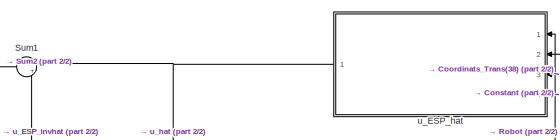
[diagram: root canvas - part 1/2, top center region]
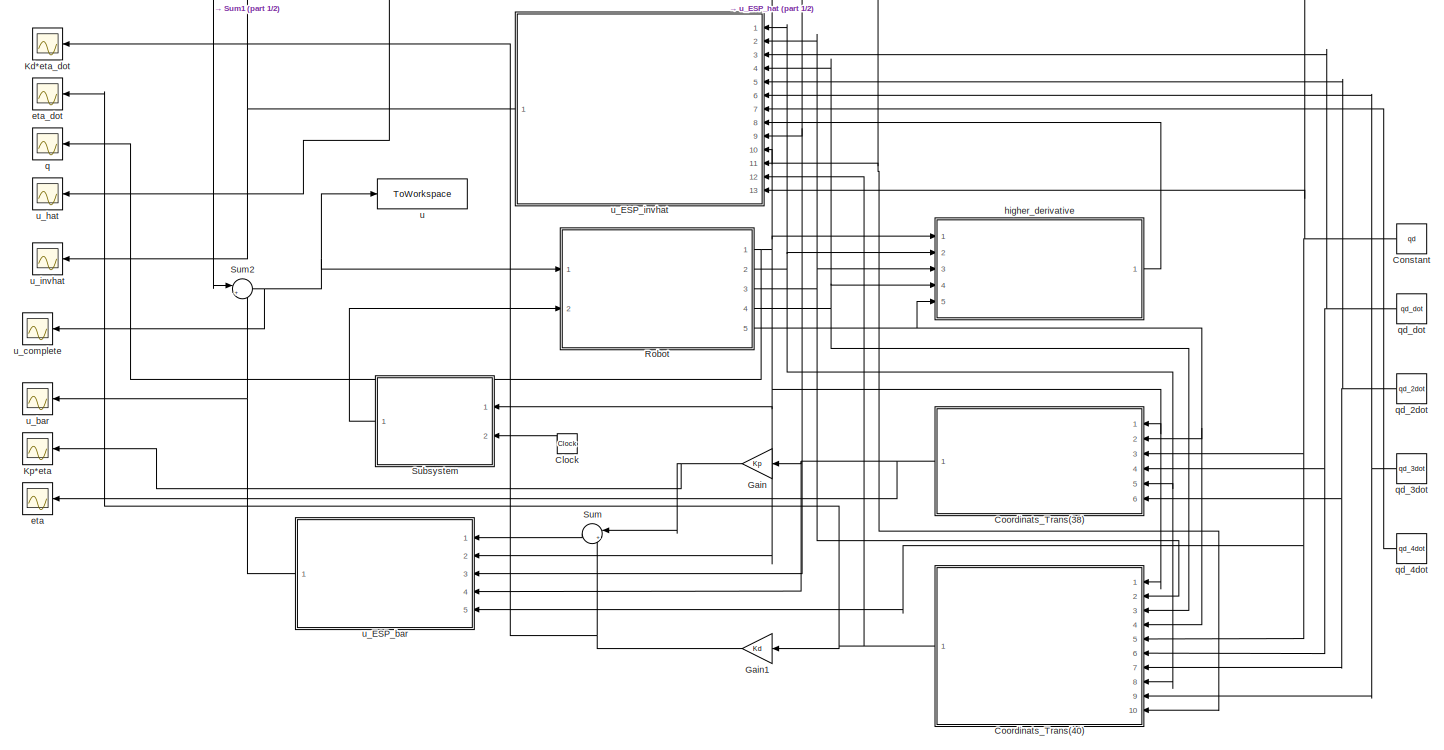
[diagram: root canvas - part 2/2, most of the canvas]
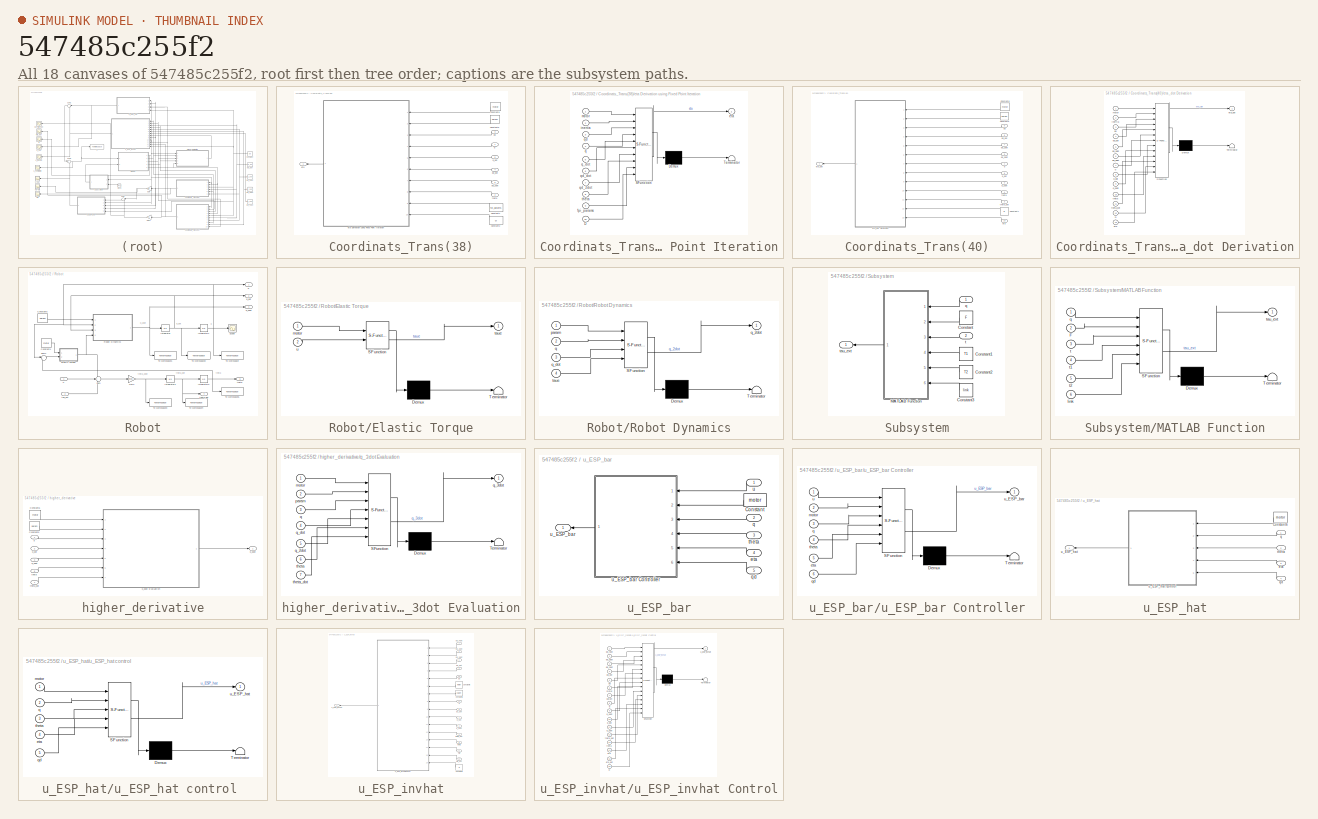
[diagram: thumbnail index - all 18 canvases of the model, root first then tree order]
MODEL slx_547485c255f2
KIND model
CONFIG AbsTol = auto
CONFIG EnableMultiTasking = off
CONFIG FixedStep = 0.001
CONFIG MaxStep = auto
CONFIG MinStep = auto
CONFIG RelTol = 1e-3
CONFIG SampleTimeConstraint = Unconstrained
CONFIG SolverName = ode8
CONFIG StartTime = 0.0
CONFIG StopTime = T
BLOCK [Clock] Clock
BLOCK [Constant] Constant
  Value = qd
  VectorParams1D = off
BLOCK [SubSystem] Coordinats_Trans(38)
  Ports = [6, 1]
  RequestExecContextInheritance = off
BLOCK [Inport] Coordinats_Trans(38)/ q_dot
  NameLocation = top
  Port = 5
BLOCK [Inport] Coordinats_Trans(38)/ qd
  NameLocation = top
  Port = 3
BLOCK [Inport] Coordinats_Trans(38)/ qd_dot
  NameLocation = top
  Port = 4
BLOCK [Constant] Coordinats_Trans(38)/Constant1
  NameLocation = top
  Value = fpi_params
  VectorParams1D = off
BLOCK [Constant] Coordinats_Trans(38)/Constant2
  NameLocation = top
  Value = D
  VectorParams1D = off
BLOCK [Constant] Coordinats_Trans(38)/Constant5
  NameLocation = top
  Value = param
  VectorParams1D = off
BLOCK [Constant] Coordinats_Trans(38)/Constant6
  NameLocation = top
  Value = motor
  VectorParams1D = off
BLOCK [Outport] Coordinats_Trans(38)/eta
  NameLocation = top
BLOCK [SubSystem] Coordinats_Trans(38)/eta Derivation using Fixed Point Iteration
  ErrorFcn = Stateflow.Translate.translate
  NameLocation = top
  PermitHierarchicalResolution = ExplicitOnly
  Ports = [10, 1]
  RequestExecContextInheritance = off
  SFBlockType = MATLAB Function
  TreatAsAtomicUnit = on
BLOCK [Demux] Coordinats_Trans(38)/eta Derivation using Fixed Point Iteration/ Demux 
  Outputs = 1
  Ports = [1, 1]
BLOCK [S-Function] Coordinats_Trans(38)/eta Derivation using Fixed Point Iteration/ SFunction 
  EnableBusSupport = on
  FunctionName = sf_sfun
  PortCounts = [10 2]
  Ports = [10, 2]
  SFcnIsStateOwnerBlock = off
  SFunctionDeploymentMode = off
  Tag = Stateflow S-Function 1
BLOCK [Terminator] Coordinats_Trans(38)/eta Derivation using Fixed Point Iteration/ Terminator 
BLOCK [Inport] Coordinats_Trans(38)/eta Derivation using Fixed Point Iteration/D
  Port = 10
BLOCK [Outport] Coordinats_Trans(38)/eta Derivation using Fixed Point Iteration/eta
BLOCK [Inport] Coordinats_Trans(38)/eta Derivation using Fixed Point Iteration/fpi_params
  Port = 9
BLOCK [Inport] Coordinats_Trans(38)/eta Derivation using Fixed Point Iteration/inertia
  Port = 2
BLOCK [Inport] Coordinats_Trans(38)/eta Derivation using Fixed Point Iteration/motor
BLOCK [Inport] Coordinats_Trans(38)/eta Derivation using Fixed Point Iteration/q
  Port = 4
BLOCK [Inport] Coordinats_Trans(38)/eta Derivation using Fixed Point Iteration/q_dot
  Port = 5
BLOCK [Inport] Coordinats_Trans(38)/eta Derivation using Fixed Point Iteration/qd
  Port = 3
BLOCK [Inport] Coordinats_Trans(38)/eta Derivation using Fixed Point Iteration/qd_2dot
  Port = 7
BLOCK [Inport] Coordinats_Trans(38)/eta Derivation using Fixed Point Iteration/qd_dot
  Port = 6
BLOCK [Inport] Coordinats_Trans(38)/eta Derivation using Fixed Point Iteration/theta
  Port = 8
BLOCK [Inport] Coordinats_Trans(38)/q
  NameLocation = top
BLOCK [Inport] Coordinats_Trans(38)/qd_2dot
  NameLocation = top
  Port = 6
BLOCK [Inport] Coordinats_Trans(38)/theta
  NameLocation = top
  Port = 2
BLOCK [SubSystem] Coordinats_Trans(40)
  Ports = [10, 1]
  RequestExecContextInheritance = off
BLOCK [Inport] Coordinats_Trans(40)/ theta
  NameLocation = top
  Port = 4
BLOCK [Constant] Coordinats_Trans(40)/Constant1
  NameLocation = top
  Value = D
  VectorParams1D = off
BLOCK [Constant] Coordinats_Trans(40)/Constant5
  NameLocation = top
  Value = param
  VectorParams1D = off
BLOCK [Constant] Coordinats_Trans(40)/Constant6
  NameLocation = top
  Value = motor
  VectorParams1D = off
BLOCK [Inport] Coordinats_Trans(40)/eta
  NameLocation = top
  Port = 10
BLOCK [Outport] Coordinats_Trans(40)/eta_dot
  NameLocation = top
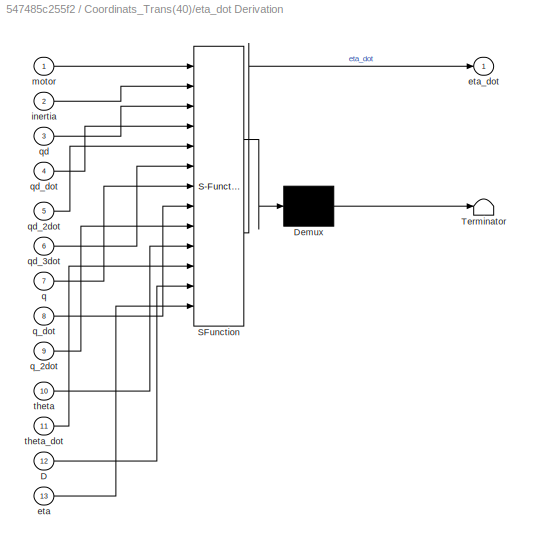
BLOCK [SubSystem] Coordinats_Trans(40)/eta_dot Derivation
  ErrorFcn = Stateflow.Translate.translate
  NameLocation = top
  PermitHierarchicalResolution = ExplicitOnly
  Ports = [13, 1]
  RequestExecContextInheritance = off
  SFBlockType = MATLAB Function
  TreatAsAtomicUnit = on
BLOCK [Demux] Coordinats_Trans(40)/eta_dot Derivation/ Demux 
  Outputs = 1
  Ports = [1, 1]
BLOCK [S-Function] Coordinats_Trans(40)/eta_dot Derivation/ SFunction 
  EnableBusSupport = on
  FunctionName = sf_sfun
  PortCounts = [13 2]
  Ports = [13, 2]
  SFcnIsStateOwnerBlock = off
  SFunctionDeploymentMode = off
  Tag = Stateflow S-Function 2
BLOCK [Terminator] Coordinats_Trans(40)/eta_dot Derivation/ Terminator 
BLOCK [Inport] Coordinats_Trans(40)/eta_dot Derivation/D
  Port = 12
BLOCK [Inport] Coordinats_Trans(40)/eta_dot Derivation/eta
  Port = 13
BLOCK [Outport] Coordinats_Trans(40)/eta_dot Derivation/eta_dot
BLOCK [Inport] Coordinats_Trans(40)/eta_dot Derivation/inertia
  Port = 2
BLOCK [Inport] Coordinats_Trans(40)/eta_dot Derivation/motor
BLOCK [Inport] Coordinats_Trans(40)/eta_dot Derivation/q
  Port = 7
BLOCK [Inport] Coordinats_Trans(40)/eta_dot Derivation/q_2dot
  Port = 9
BLOCK [Inport] Coordinats_Trans(40)/eta_dot Derivation/q_dot
  Port = 8
BLOCK [Inport] Coordinats_Trans(40)/eta_dot Derivation/qd
  Port = 3
BLOCK [Inport] Coordinats_Trans(40)/eta_dot Derivation/qd_2dot
  Port = 5
BLOCK [Inport] Coordinats_Trans(40)/eta_dot Derivation/qd_3dot
  Port = 6
BLOCK [Inport] Coordinats_Trans(40)/eta_dot Derivation/qd_dot
  Port = 4
BLOCK [Inport] Coordinats_Trans(40)/eta_dot Derivation/theta
  Port = 10
BLOCK [Inport] Coordinats_Trans(40)/eta_dot Derivation/theta_dot
  Port = 11
BLOCK [Inport] Coordinats_Trans(40)/q
  NameLocation = top
BLOCK [Inport] Coordinats_Trans(40)/q_2dot
  NameLocation = top
  Port = 2
BLOCK [Inport] Coordinats_Trans(40)/q_dot
  NameLocation = top
  Port = 8
BLOCK [Inport] Coordinats_Trans(40)/qd
  NameLocation = top
  Port = 5
BLOCK [Inport] Coordinats_Trans(40)/qd_2dot
  NameLocation = top
  Port = 7
BLOCK [Inport] Coordinats_Trans(40)/qd_3dot
  NameLocation = top
  Port = 9
BLOCK [Inport] Coordinats_Trans(40)/qd_dot
  NameLocation = top
  Port = 6
BLOCK [Inport] Coordinats_Trans(40)/theta_dot
  NameLocation = top
  Port = 3
BLOCK [Gain] Gain
  Gain = Kp
  Multiplication = Matrix(K*u) (u vector)
BLOCK [Gain] Gain1
  Gain = Kd
  Multiplication = Matrix(K*u) (u vector)
BLOCK [Scope] Kd*eta_dot
  Floating = off
  NumInputPorts = 1
  Ports = [1]
  ScopeSpecificationString = Simulink.scopes.TimeScopeBlockCfg('CurrentConfiguration', extmgr.ConfigurationSet(extmgr.Configuration('Core','General UI',true),extmgr.Configuration('Core','Source UI',true),extmgr.Configuration('Sources','WiredSimulink',true,'DataLoggingVariableName','ScopeData9'),extmgr.Configuration('Visuals','Time Domain',true,'SerializedDisplays',{struct('MinYLimReal','-6028.16779','MaxYLimReal','17338.59826...<+1449ch>
BLOCK [Scope] Kp*eta
  Floating = off
  NumInputPorts = 1
  Ports = [1]
  ScopeSpecificationString = Simulink.scopes.TimeScopeBlockCfg('CurrentConfiguration', extmgr.ConfigurationSet(extmgr.Configuration('Core','General UI',true),extmgr.Configuration('Core','Source UI',true),extmgr.Configuration('Sources','WiredSimulink',true,'DataLoggingVariableName','ScopeData6'),extmgr.Configuration('Visuals','Time Domain',true,'SerializedDisplays',{struct('MinYLimReal','-974.74154','MaxYLimReal','873.8432','Y...<+1422ch>
BLOCK [SubSystem] Robot
  Ports = [2, 5]
  RequestExecContextInheritance = off
BLOCK [Constant] Robot/Constant1
  Value = motor
  VectorParams1D = off
BLOCK [Constant] Robot/Constant5
  Value = param
  VectorParams1D = off
BLOCK [SubSystem] Robot/Elastic Torque
  ErrorFcn = Stateflow.Translate.translate
  PermitHierarchicalResolution = ExplicitOnly
  Ports = [2, 1]
  RequestExecContextInheritance = off
  SFBlockType = MATLAB Function
  TreatAsAtomicUnit = on
BLOCK [Demux] Robot/Elastic Torque/ Demux 
  Outputs = 1
  Ports = [1, 1]
BLOCK [S-Function] Robot/Elastic Torque/ SFunction 
  EnableBusSupport = on
  FunctionName = sf_sfun
  PortCounts = [2 2]
  Ports = [2, 2]
  SFcnIsStateOwnerBlock = off
  SFunctionDeploymentMode = off
  Tag = Stateflow S-Function 7
BLOCK [Terminator] Robot/Elastic Torque/ Terminator 
BLOCK [Inport] Robot/Elastic Torque/motor
BLOCK [Outport] Robot/Elastic Torque/taue
BLOCK [Inport] Robot/Elastic Torque/u
  Port = 2
BLOCK [Gain] Robot/Gain
  Gain = invB
  Multiplication = Matrix(K*u)
BLOCK [Integrator] Robot/Integrator
  InitialCondition = qd0
  Ports = [1, 1]
BLOCK [Integrator] Robot/Integrator1
  InitialCondition = q0
  Ports = [1, 1]
BLOCK [Integrator] Robot/Integrator2
  InitialCondition = thetad0
  Ports = [1, 1]
BLOCK [Integrator] Robot/Integrator3
  InitialCondition = theta0
  Ports = [1, 1]
BLOCK [SubSystem] Robot/Robot Dynamics
  ErrorFcn = Stateflow.Translate.translate
  PermitHierarchicalResolution = ExplicitOnly
  Ports = [4, 1]
  RequestExecContextInheritance = off
  SFBlockType = MATLAB Function
  TreatAsAtomicUnit = on
BLOCK [Demux] Robot/Robot Dynamics/ Demux 
  Outputs = 1
  Ports = [1, 1]
BLOCK [S-Function] Robot/Robot Dynamics/ SFunction 
  EnableBusSupport = on
  FunctionName = sf_sfun
  PortCounts = [4 2]
  Ports = [4, 2]
  SFcnIsStateOwnerBlock = off
  SFunctionDeploymentMode = off
  Tag = Stateflow S-Function 4
BLOCK [Terminator] Robot/Robot Dynamics/ Terminator 
BLOCK [Inport] Robot/Robot Dynamics/param
BLOCK [Inport] Robot/Robot Dynamics/q
  Port = 2
BLOCK [Outport] Robot/Robot Dynamics/q_2dot
BLOCK [Inport] Robot/Robot Dynamics/q_dot
  Port = 3
BLOCK [Inport] Robot/Robot Dynamics/taue
  Port = 4
BLOCK [Scope] Robot/Scope
  Floating = off
  NumInputPorts = 1
  Ports = [1]
  ScopeSpecificationString = Simulink.scopes.TimeScopeBlockCfg('CurrentConfiguration', extmgr.ConfigurationSet(extmgr.Configuration('Core','General UI',true),extmgr.Configuration('Core','Source UI',true),extmgr.Configuration('Sources','WiredSimulink',true,'DataLoggingVariableName','ScopeData1'),extmgr.Configuration('Visuals','Time Domain',true,'SerializedDisplays',{struct('MinYLimReal','-1.76715','MaxYLimReal','0.19635','YLab...<+1433ch>
BLOCK [Sum] Robot/Sum
  Inputs = -++
  Ports = [3, 1]
BLOCK [Sum] Robot/Sum1
  Inputs = |-+
  Ports = [2, 1]
BLOCK [ToWorkspace] Robot/To Workspace
  FixptAsFi = on
  MaxDataPoints = inf
  Ports = [1]
  SampleTime = -1
  VariableName = q
BLOCK [ToWorkspace] Robot/To Workspace1
  FixptAsFi = on
  MaxDataPoints = inf
  Ports = [1]
  SampleTime = -1
  VariableName = q_2dot
BLOCK [ToWorkspace] Robot/To Workspace2
  FixptAsFi = on
  MaxDataPoints = inf
  Ports = [1]
  SampleTime = -1
  VariableName = q_dot
BLOCK [ToWorkspace] Robot/To Workspace3
  FixptAsFi = on
  MaxDataPoints = inf
  Ports = [1]
  SampleTime = -1
  VariableName = theta_2dot
BLOCK [ToWorkspace] Robot/To Workspace4
  FixptAsFi = on
  MaxDataPoints = inf
  Ports = [1]
  SampleTime = -1
  VariableName = theta_dot
BLOCK [ToWorkspace] Robot/To Workspace5
  FixptAsFi = on
  MaxDataPoints = inf
  Ports = [1]
  SampleTime = -1
  VariableName = theta
BLOCK [Outport] Robot/q
  IconDisplay = Port number and signal name
BLOCK [Outport] Robot/q_2dot
  Port = 3
BLOCK [Outport] Robot/q_dot
  IconDisplay = Port number and signal name
  Port = 2
BLOCK [Inport] Robot/tau_ext
  Port = 2
BLOCK [Outport] Robot/theta
  IconDisplay = Port number and signal name
  Port = 5
BLOCK [Outport] Robot/theta_dot 
  IconDisplay = Port number and signal name
  Port = 4
BLOCK [Inport] Robot/u
  IconDisplay = Signal name
BLOCK [SubSystem] Subsystem
  Ports = [2, 1]
  RequestExecContextInheritance = off
BLOCK [Constant] Subsystem/Constant
  Value = F
  VectorParams1D = off
BLOCK [Constant] Subsystem/Constant1
  Value = T1
  VectorParams1D = off
BLOCK [Constant] Subsystem/Constant2
  Value = T2
  VectorParams1D = off
BLOCK [Constant] Subsystem/Constant3
  Value = link
  VectorParams1D = off
BLOCK [SubSystem] Subsystem/MATLAB Function
  ErrorFcn = Stateflow.Translate.translate
  PermitHierarchicalResolution = ExplicitOnly
  Ports = [6, 1]
  RequestExecContextInheritance = off
  SFBlockType = MATLAB Function
  TreatAsAtomicUnit = on
BLOCK [Demux] Subsystem/MATLAB Function/ Demux 
  Outputs = 1
  Ports = [1, 1]
BLOCK [S-Function] Subsystem/MATLAB Function/ SFunction 
  EnableBusSupport = on
  FunctionName = sf_sfun
  PortCounts = [6 2]
  Ports = [6, 2]
  SFcnIsStateOwnerBlock = off
  SFunctionDeploymentMode = off
  Tag = Stateflow S-Function 8
BLOCK [Terminator] Subsystem/MATLAB Function/ Terminator 
BLOCK [Inport] Subsystem/MATLAB Function/F
  Port = 2
BLOCK [Inport] Subsystem/MATLAB Function/link
  Port = 6
BLOCK [Inport] Subsystem/MATLAB Function/q
BLOCK [Inport] Subsystem/MATLAB Function/t
  Port = 3
BLOCK [Inport] Subsystem/MATLAB Function/t1
  Port = 4
BLOCK [Inport] Subsystem/MATLAB Function/t2
  Port = 5
BLOCK [Outport] Subsystem/MATLAB Function/tau_ext
BLOCK [Inport] Subsystem/q
BLOCK [Inport] Subsystem/t
  Port = 2
BLOCK [Outport] Subsystem/tau_ext
BLOCK [Sum] Sum
  Inputs = |++
  Ports = [2, 1]
BLOCK [Sum] Sum1
  Inputs = |++
  Ports = [2, 1]
BLOCK [Sum] Sum2
  Inputs = |++
  Ports = [2, 1]
BLOCK [Scope] eta
  Floating = off
  NumInputPorts = 1
  Ports = [1]
  ScopeSpecificationString = Simulink.scopes.TimeScopeBlockCfg('CurrentConfiguration', extmgr.ConfigurationSet(extmgr.Configuration('Core','General UI',true),extmgr.Configuration('Core','Source UI',true),extmgr.Configuration('Sources','WiredSimulink',true,'DataLoggingVariableName','ScopeData5'),extmgr.Configuration('Visuals','Time Domain',true,'SerializedDisplays',{struct('MinYLimReal','-0.99746','MaxYLimReal','0.42209','YLab...<+1502ch>
BLOCK [Scope] eta_dot
  Floating = off
  NumInputPorts = 1
  Ports = [1]
  ScopeSpecificationString = Simulink.scopes.TimeScopeBlockCfg('CurrentConfiguration', extmgr.ConfigurationSet(extmgr.Configuration('Core','General UI',true),extmgr.Configuration('Core','Source UI',true),extmgr.Configuration('Sources','WiredSimulink',true,'DataLoggingVariableName','ScopeData8'),extmgr.Configuration('Visuals','Time Domain',true,'SerializedDisplays',{struct('MinYLimReal','-3.69425','MaxYLimReal','6.18746','YLab...<+1458ch>
BLOCK [SubSystem] higher_derivative
  Ports = [5, 1]
  RequestExecContextInheritance = off
BLOCK [Constant] higher_derivative/Constant5
  Value = param
  VectorParams1D = off
BLOCK [Constant] higher_derivative/Constant6
  Value = motor
  VectorParams1D = off
BLOCK [Inport] higher_derivative/q 
BLOCK [Inport] higher_derivative/q_2dot
  Port = 3
BLOCK [Outport] higher_derivative/q_3dot
BLOCK [SubSystem] higher_derivative/q_3dot Evaluation
  ErrorFcn = Stateflow.Translate.translate
  PermitHierarchicalResolution = ExplicitOnly
  Ports = [7, 1]
  RequestExecContextInheritance = off
  SFBlockType = MATLAB Function
  TreatAsAtomicUnit = on
BLOCK [Demux] higher_derivative/q_3dot Evaluation/ Demux 
  Outputs = 1
  Ports = [1, 1]
BLOCK [S-Function] higher_derivative/q_3dot Evaluation/ SFunction 
  EnableBusSupport = on
  FunctionName = sf_sfun
  PortCounts = [7 2]
  Ports = [7, 2]
  SFcnIsStateOwnerBlock = off
  SFunctionDeploymentMode = off
  Tag = Stateflow S-Function 10
BLOCK [Terminator] higher_derivative/q_3dot Evaluation/ Terminator 
BLOCK [Inport] higher_derivative/q_3dot Evaluation/motor
BLOCK [Inport] higher_derivative/q_3dot Evaluation/param
  Port = 2
BLOCK [Inport] higher_derivative/q_3dot Evaluation/q
  Port = 3
BLOCK [Inport] higher_derivative/q_3dot Evaluation/q_2dot
  Port = 5
BLOCK [Outport] higher_derivative/q_3dot Evaluation/q_3dot
BLOCK [Inport] higher_derivative/q_3dot Evaluation/q_dot
  Port = 4
BLOCK [Inport] higher_derivative/q_3dot Evaluation/theta
  Port = 6
BLOCK [Inport] higher_derivative/q_3dot Evaluation/theta_dot
  Port = 7
BLOCK [Inport] higher_derivative/q_dot
  Port = 2
BLOCK [Inport] higher_derivative/theta
  Port = 5
BLOCK [Inport] higher_derivative/theta_dot
  Port = 4
BLOCK [Scope] q
  Floating = off
  NumInputPorts = 1
  Ports = [1]
  ScopeSpecificationString = Simulink.scopes.TimeScopeBlockCfg('CurrentConfiguration', extmgr.ConfigurationSet(extmgr.Configuration('Core','General UI',true),extmgr.Configuration('Core','Source UI',true),extmgr.Configuration('Sources','WiredSimulink',true,'DataLoggingVariableName','ScopeData7'),extmgr.Configuration('Visuals','Time Domain',true,'SerializedDisplays',{struct('MinYLimReal','-0.74319','MaxYLimReal','1.68875','YLab...<+1421ch>
BLOCK [Constant] qd_2dot
  Value = qd_2dot
  VectorParams1D = off
BLOCK [Constant] qd_3dot
  Value = qd_3dot
  VectorParams1D = off
BLOCK [Constant] qd_4dot
  Value = qd_4dot
  VectorParams1D = off
BLOCK [Constant] qd_dot
  Value = qd_dot
  VectorParams1D = off
BLOCK [ToWorkspace] u
  FixptAsFi = on
  MaxDataPoints = inf
  Ports = [1]
  SampleTime = -1
  VariableName = u
BLOCK [SubSystem] u_ESP_bar
  Ports = [5, 1]
  RequestExecContextInheritance = off
BLOCK [Constant] u_ESP_bar/Constant
  Value = motor
  VectorParams1D = off
BLOCK [Inport] u_ESP_bar/eta
  Port = 4
BLOCK [Inport] u_ESP_bar/q
  Port = 2
BLOCK [Inport] u_ESP_bar/qd
  Port = 5
BLOCK [Inport] u_ESP_bar/theta
  Port = 3
BLOCK [Inport] u_ESP_bar/u
BLOCK [Outport] u_ESP_bar/u_ESP_bar
BLOCK [SubSystem] u_ESP_bar/u_ESP_bar Controller
  ErrorFcn = Stateflow.Translate.translate
  PermitHierarchicalResolution = ExplicitOnly
  Ports = [6, 1]
  RequestExecContextInheritance = off
  SFBlockType = MATLAB Function
  TreatAsAtomicUnit = on
BLOCK [Demux] u_ESP_bar/u_ESP_bar Controller/ Demux 
  Outputs = 1
  Ports = [1, 1]
BLOCK [S-Function] u_ESP_bar/u_ESP_bar Controller/ SFunction 
  EnableBusSupport = on
  FunctionName = sf_sfun
  PortCounts = [6 2]
  Ports = [6, 2]
  SFcnIsStateOwnerBlock = off
  SFunctionDeploymentMode = off
  Tag = Stateflow S-Function 3
BLOCK [Terminator] u_ESP_bar/u_ESP_bar Controller/ Terminator 
BLOCK [Inport] u_ESP_bar/u_ESP_bar Controller/eta
  Port = 5
BLOCK [Inport] u_ESP_bar/u_ESP_bar Controller/motor
  Port = 2
BLOCK [Inport] u_ESP_bar/u_ESP_bar Controller/q
  Port = 3
BLOCK [Inport] u_ESP_bar/u_ESP_bar Controller/qd
  Port = 6
BLOCK [Inport] u_ESP_bar/u_ESP_bar Controller/theta
  Port = 4
BLOCK [Inport] u_ESP_bar/u_ESP_bar Controller/u
BLOCK [Outport] u_ESP_bar/u_ESP_bar Controller/u_ESP_bar
BLOCK [SubSystem] u_ESP_hat
  Ports = [4, 1]
  RequestExecContextInheritance = off
BLOCK [Constant] u_ESP_hat/Constant6
  Value = motor
  VectorParams1D = off
BLOCK [Inport] u_ESP_hat/eta
  Port = 3
BLOCK [Inport] u_ESP_hat/q 
BLOCK [Inport] u_ESP_hat/qd
  Port = 4
BLOCK [Inport] u_ESP_hat/theta
  Port = 2
BLOCK [Outport] u_ESP_hat/u_ESP_hat
BLOCK [SubSystem] u_ESP_hat/u_ESP_hat control 
  ErrorFcn = Stateflow.Translate.translate
  PermitHierarchicalResolution = ExplicitOnly
  Ports = [5, 1]
  RequestExecContextInheritance = off
  SFBlockType = MATLAB Function
  TreatAsAtomicUnit = on
BLOCK [Demux] u_ESP_hat/u_ESP_hat control / Demux 
  Outputs = 1
  Ports = [1, 1]
BLOCK [S-Function] u_ESP_hat/u_ESP_hat control / SFunction 
  EnableBusSupport = on
  FunctionName = sf_sfun
  PortCounts = [5 2]
  Ports = [5, 2]
  SFcnIsStateOwnerBlock = off
  SFunctionDeploymentMode = off
  Tag = Stateflow S-Function 6
BLOCK [Terminator] u_ESP_hat/u_ESP_hat control / Terminator 
BLOCK [Inport] u_ESP_hat/u_ESP_hat control /eta
  Port = 4
BLOCK [Inport] u_ESP_hat/u_ESP_hat control /motor
BLOCK [Inport] u_ESP_hat/u_ESP_hat control /q
  Port = 2
BLOCK [Inport] u_ESP_hat/u_ESP_hat control /qd
  Port = 5
BLOCK [Inport] u_ESP_hat/u_ESP_hat control /theta
  Port = 3
BLOCK [Outport] u_ESP_hat/u_ESP_hat control /u_ESP_hat
BLOCK [SubSystem] u_ESP_invhat
  Ports = [13, 1]
  RequestExecContextInheritance = off
BLOCK [Constant] u_ESP_invhat/Constant1
  Value = D
  VectorParams1D = off
BLOCK [Constant] u_ESP_invhat/Constant5
  Value = param
  VectorParams1D = off
BLOCK [Constant] u_ESP_invhat/Constant6
  Value = motor
  VectorParams1D = off
BLOCK [Inport] u_ESP_invhat/eta
  Port = 11
BLOCK [Inport] u_ESP_invhat/eta_dot
  Port = 12
BLOCK [Inport] u_ESP_invhat/q 
  Port = 10
BLOCK [Inport] u_ESP_invhat/q3_dot
  Port = 8
BLOCK [Inport] u_ESP_invhat/q_2dot
  Port = 2
BLOCK [Inport] u_ESP_invhat/q_dot
BLOCK [Inport] u_ESP_invhat/qd
  Port = 13
BLOCK [Inport] u_ESP_invhat/qd_2dot
  Port = 5
BLOCK [Inport] u_ESP_invhat/qd_3dot
  Port = 6
BLOCK [Inport] u_ESP_invhat/qd_4dot
  Port = 7
BLOCK [Inport] u_ESP_invhat/qd_dot
  Port = 3
BLOCK [Inport] u_ESP_invhat/theta
  Port = 9
BLOCK [Inport] u_ESP_invhat/theta_dot
  Port = 4
BLOCK [Outport] u_ESP_invhat/u_ESP_invhat
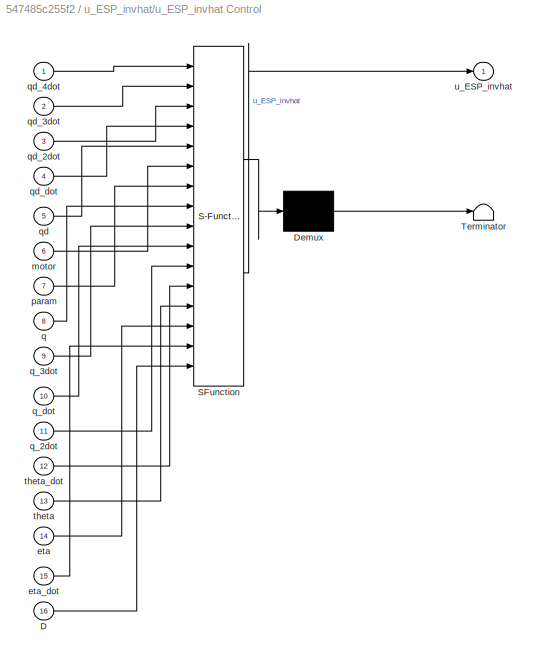
BLOCK [SubSystem] u_ESP_invhat/u_ESP_invhat Control
  ErrorFcn = Stateflow.Translate.translate
  PermitHierarchicalResolution = ExplicitOnly
  Ports = [16, 1]
  RequestExecContextInheritance = off
  SFBlockType = MATLAB Function
  TreatAsAtomicUnit = on
BLOCK [Demux] u_ESP_invhat/u_ESP_invhat Control/ Demux 
  Outputs = 1
  Ports = [1, 1]
BLOCK [S-Function] u_ESP_invhat/u_ESP_invhat Control/ SFunction 
  EnableBusSupport = on
  FunctionName = sf_sfun
  PortCounts = [16 2]
  Ports = [16, 2]
  SFcnIsStateOwnerBlock = off
  SFunctionDeploymentMode = off
  Tag = Stateflow S-Function 5
BLOCK [Terminator] u_ESP_invhat/u_ESP_invhat Control/ Terminator 
BLOCK [Inport] u_ESP_invhat/u_ESP_invhat Control/D
  Port = 16
BLOCK [Inport] u_ESP_invhat/u_ESP_invhat Control/eta
  Port = 14
BLOCK [Inport] u_ESP_invhat/u_ESP_invhat Control/eta_dot
  Port = 15
BLOCK [Inport] u_ESP_invhat/u_ESP_invhat Control/motor
  Port = 6
BLOCK [Inport] u_ESP_invhat/u_ESP_invhat Control/param
  Port = 7
BLOCK [Inport] u_ESP_invhat/u_ESP_invhat Control/q
  Port = 8
BLOCK [Inport] u_ESP_invhat/u_ESP_invhat Control/q_2dot
  Port = 11
BLOCK [Inport] u_ESP_invhat/u_ESP_invhat Control/q_3dot
  Port = 9
BLOCK [Inport] u_ESP_invhat/u_ESP_invhat Control/q_dot
  Port = 10
BLOCK [Inport] u_ESP_invhat/u_ESP_invhat Control/qd
  Port = 5
BLOCK [Inport] u_ESP_invhat/u_ESP_invhat Control/qd_2dot
  Port = 3
BLOCK [Inport] u_ESP_invhat/u_ESP_invhat Control/qd_3dot
  Port = 2
BLOCK [Inport] u_ESP_invhat/u_ESP_invhat Control/qd_4dot
BLOCK [Inport] u_ESP_invhat/u_ESP_invhat Control/qd_dot
  Port = 4
BLOCK [Inport] u_ESP_invhat/u_ESP_invhat Control/theta
  Port = 13
BLOCK [Inport] u_ESP_invhat/u_ESP_invhat Control/theta_dot
  Port = 12
BLOCK [Outport] u_ESP_invhat/u_ESP_invhat Control/u_ESP_invhat
BLOCK [Scope] u_bar
  Floating = off
  NumInputPorts = 1
  Ports = [1]
  ScopeSpecificationString = Simulink.scopes.TimeScopeBlockCfg('CurrentConfiguration', extmgr.ConfigurationSet(extmgr.Configuration('Core','General UI',true),extmgr.Configuration('Core','Source UI',true),extmgr.Configuration('Sources','WiredSimulink',true,'DataLoggingVariableName','ScopeData3'),extmgr.Configuration('Visuals','Time Domain',true),extmgr.Configuration('Tools','Plot Navigation',true),extmgr.Configuration('Tools',...<+40ch>
BLOCK [Scope] u_complete
  Floating = off
  NumInputPorts = 1
  Ports = [1]
  ScopeSpecificationString = Simulink.scopes.TimeScopeBlockCfg('CurrentConfiguration', extmgr.ConfigurationSet(extmgr.Configuration('Core','General UI',true),extmgr.Configuration('Core','Source UI',true),extmgr.Configuration('Sources','WiredSimulink',true,'DataLoggingVariableName','ScopeData4'),extmgr.Configuration('Visuals','Time Domain',true),extmgr.Configuration('Tools','Plot Navigation',true),extmgr.Configuration('Tools',...<+40ch>
BLOCK [Scope] u_hat
  Floating = off
  NumInputPorts = 1
  Ports = [1]
  ScopeSpecificationString = Simulink.scopes.TimeScopeBlockCfg('CurrentConfiguration', extmgr.ConfigurationSet(extmgr.Configuration('Core','General UI',true),extmgr.Configuration('Core','Source UI',true),extmgr.Configuration('Sources','WiredSimulink',true,'DataLoggingVariableName','ScopeData1'),extmgr.Configuration('Visuals','Time Domain',true),extmgr.Configuration('Tools','Plot Navigation',true),extmgr.Configuration('Tools',...<+40ch>
BLOCK [Scope] u_invhat
  Floating = off
  NumInputPorts = 1
  Ports = [1]
  ScopeSpecificationString = Simulink.scopes.TimeScopeBlockCfg('CurrentConfiguration', extmgr.ConfigurationSet(extmgr.Configuration('Core','General UI',true),extmgr.Configuration('Core','Source UI',true),extmgr.Configuration('Sources','WiredSimulink',true,'DataLoggingVariableName','ScopeData2'),extmgr.Configuration('Visuals','Time Domain',true),extmgr.Configuration('Tools','Plot Navigation',true),extmgr.Configuration('Tools',...<+40ch>
ANNOTATION Robot: q
ANNOTATION Robot: q_2dot
ANNOTATION Robot: q_dot
ANNOTATION Robot: theta
ANNOTATION Robot: theta_2dot
ANNOTATION Robot: theta_dot
LINE Clock:1 -> Subsystem:2
NET Constant:1 -> Coordinats_Trans(38):3, Coordinats_Trans(40):5, u_ESP_bar:5, u_ESP_hat:4, u_ESP_invhat:13
LINE Coordinats_Trans(38)/ q_dot:1 -> Coordinats_Trans(38)/eta Derivation using Fixed Point Iteration:5
LINE Coordinats_Trans(38)/ qd:1 -> Coordinats_Trans(38)/eta Derivation using Fixed Point Iteration:3
LINE Coordinats_Trans(38)/ qd_dot:1 -> Coordinats_Trans(38)/eta Derivation using Fixed Point Iteration:6
LINE Coordinats_Trans(38)/Constant1:1 -> Coordinats_Trans(38)/eta Derivation using Fixed Point Iteration:9
LINE Coordinats_Trans(38)/Constant2:1 -> Coordinats_Trans(38)/eta Derivation using Fixed Point Iteration:10
LINE Coordinats_Trans(38)/Constant5:1 -> Coordinats_Trans(38)/eta Derivation using Fixed Point Iteration:2
LINE Coordinats_Trans(38)/Constant6:1 -> Coordinats_Trans(38)/eta Derivation using Fixed Point Iteration:1
LINE Coordinats_Trans(38)/eta Derivation using Fixed Point Iteration:1 -> Coordinats_Trans(38)/eta:1
LINE Coordinats_Trans(38)/q:1 -> Coordinats_Trans(38)/eta Derivation using Fixed Point Iteration:4
LINE Coordinats_Trans(38)/qd_2dot:1 -> Coordinats_Trans(38)/eta Derivation using Fixed Point Iteration:7
LINE Coordinats_Trans(38)/theta:1 -> Coordinats_Trans(38)/eta Derivation using Fixed Point Iteration:8
NET Coordinats_Trans(38):1 -> Coordinats_Trans(40):10, Gain:1, eta:1, u_ESP_bar:4, u_ESP_hat:3, u_ESP_invhat:11
LINE Coordinats_Trans(40)/ theta:1 -> Coordinats_Trans(40)/eta_dot Derivation:10
LINE Coordinats_Trans(40)/Constant1:1 -> Coordinats_Trans(40)/eta_dot Derivation:12
LINE Coordinats_Trans(40)/Constant5:1 -> Coordinats_Trans(40)/eta_dot Derivation:2
LINE Coordinats_Trans(40)/Constant6:1 -> Coordinats_Trans(40)/eta_dot Derivation:1
LINE Coordinats_Trans(40)/eta:1 -> Coordinats_Trans(40)/eta_dot Derivation:13
LINE Coordinats_Trans(40)/eta_dot Derivation:1 -> Coordinats_Trans(40)/eta_dot:1
LINE Coordinats_Trans(40)/q:1 -> Coordinats_Trans(40)/eta_dot Derivation:7
LINE Coordinats_Trans(40)/q_2dot:1 -> Coordinats_Trans(40)/eta_dot Derivation:9
LINE Coordinats_Trans(40)/q_dot:1 -> Coordinats_Trans(40)/eta_dot Derivation:8
LINE Coordinats_Trans(40)/qd:1 -> Coordinats_Trans(40)/eta_dot Derivation:3
LINE Coordinats_Trans(40)/qd_2dot:1 -> Coordinats_Trans(40)/eta_dot Derivation:5
LINE Coordinats_Trans(40)/qd_3dot:1 -> Coordinats_Trans(40)/eta_dot Derivation:6
LINE Coordinats_Trans(40)/qd_dot:1 -> Coordinats_Trans(40)/eta_dot Derivation:4
LINE Coordinats_Trans(40)/theta_dot:1 -> Coordinats_Trans(40)/eta_dot Derivation:11
NET Coordinats_Trans(40):1 -> Gain1:1, eta_dot:1, u_ESP_invhat:12
NET Gain1:1 -> Kd*eta_dot:1, Sum:2
NET Gain:1 -> Kp*eta:1, Sum:1
LINE Robot/Constant1:1 -> Robot/Elastic Torque:1
LINE Robot/Constant5:1 -> Robot/Robot Dynamics:1
NET Robot/Elastic Torque:1 -> Robot/Robot Dynamics:4, Robot/Sum:1
NET Robot/Gain:1 -> Robot/Integrator2:1, Robot/To Workspace3:1
NET Robot/Integrator1:1 -> Robot/Robot Dynamics:2, Robot/Scope:1, Robot/Sum1:1, Robot/To Workspace:1, Robot/q:1
NET Robot/Integrator2:1 -> Robot/Integrator3:1, Robot/To Workspace4:1, Robot/theta_dot :1
NET Robot/Integrator3:1 -> Robot/Sum1:2, Robot/To Workspace5:1, Robot/theta:1
NET Robot/Integrator:1 -> Robot/Integrator1:1, Robot/Robot Dynamics:3, Robot/To Workspace2:1, Robot/q_dot:1
NET Robot/Robot Dynamics:1 -> Robot/Integrator:1, Robot/To Workspace1:1, Robot/q_2dot:1
LINE Robot/Sum1:1 -> Robot/Elastic Torque:2
LINE Robot/Sum:1 -> Robot/Gain:1
LINE Robot/tau_ext:1 -> Robot/Sum:3
LINE Robot/u:1 -> Robot/Sum:2
NET Robot:1 -> Coordinats_Trans(38):1, Coordinats_Trans(40):1, Subsystem:1, higher_derivative:1, q:1, u_ESP_bar:2, u_ESP_hat:1, u_ESP_invhat:10
NET Robot:2 -> Coordinats_Trans(38):5, Coordinats_Trans(40):8, higher_derivative:2, u_ESP_invhat:1
NET Robot:3 -> Coordinats_Trans(40):2, higher_derivative:3, u_ESP_invhat:2
NET Robot:4 -> Coordinats_Trans(40):3, higher_derivative:4, u_ESP_invhat:4
NET Robot:5 -> Coordinats_Trans(38):2, Coordinats_Trans(40):4, higher_derivative:5, u_ESP_bar:3, u_ESP_hat:2, u_ESP_invhat:9
LINE Subsystem/Constant1:1 -> Subsystem/MATLAB Function:4
LINE Subsystem/Constant2:1 -> Subsystem/MATLAB Function:5
LINE Subsystem/Constant3:1 -> Subsystem/MATLAB Function:6
LINE Subsystem/Constant:1 -> Subsystem/MATLAB Function:2
LINE Subsystem/MATLAB Function:1 -> Subsystem/tau_ext:1
LINE Subsystem/q:1 -> Subsystem/MATLAB Function:1
LINE Subsystem/t:1 -> Subsystem/MATLAB Function:3
LINE Subsystem:1 -> Robot:2
LINE Sum1:1 -> Sum2:1
NET Sum2:1 -> Robot:1, u:1, u_complete:1
LINE Sum:1 -> u_ESP_bar:1
LINE higher_derivative/Constant5:1 -> higher_derivative/q_3dot Evaluation:2
LINE higher_derivative/Constant6:1 -> higher_derivative/q_3dot Evaluation:1
LINE higher_derivative/q :1 -> higher_derivative/q_3dot Evaluation:3
LINE higher_derivative/q_2dot:1 -> higher_derivative/q_3dot Evaluation:5
LINE higher_derivative/q_3dot Evaluation:1 -> higher_derivative/q_3dot:1
LINE higher_derivative/q_dot:1 -> higher_derivative/q_3dot Evaluation:4
LINE higher_derivative/theta:1 -> higher_derivative/q_3dot Evaluation:6
LINE higher_derivative/theta_dot:1 -> higher_derivative/q_3dot Evaluation:7
LINE higher_derivative:1 -> u_ESP_invhat:8
NET qd_2dot:1 -> Coordinats_Trans(38):6, Coordinats_Trans(40):7, u_ESP_invhat:5
NET qd_3dot:1 -> Coordinats_Trans(40):9, u_ESP_invhat:6
LINE qd_4dot:1 -> u_ESP_invhat:7
NET qd_dot:1 -> Coordinats_Trans(38):4, Coordinats_Trans(40):6, u_ESP_invhat:3
LINE u_ESP_bar/Constant:1 -> u_ESP_bar/u_ESP_bar Controller:2
LINE u_ESP_bar/eta:1 -> u_ESP_bar/u_ESP_bar Controller:5
LINE u_ESP_bar/q:1 -> u_ESP_bar/u_ESP_bar Controller:3
LINE u_ESP_bar/qd:1 -> u_ESP_bar/u_ESP_bar Controller:6
LINE u_ESP_bar/theta:1 -> u_ESP_bar/u_ESP_bar Controller:4
LINE u_ESP_bar/u:1 -> u_ESP_bar/u_ESP_bar Controller:1
LINE u_ESP_bar/u_ESP_bar Controller:1 -> u_ESP_bar/u_ESP_bar:1
NET u_ESP_bar:1 -> Sum2:2, u_bar:1
LINE u_ESP_hat/Constant6:1 -> u_ESP_hat/u_ESP_hat control :1
LINE u_ESP_hat/eta:1 -> u_ESP_hat/u_ESP_hat control :4
LINE u_ESP_hat/q :1 -> u_ESP_hat/u_ESP_hat control :2
LINE u_ESP_hat/qd:1 -> u_ESP_hat/u_ESP_hat control :5
LINE u_ESP_hat/theta:1 -> u_ESP_hat/u_ESP_hat control :3
LINE u_ESP_hat/u_ESP_hat control :1 -> u_ESP_hat/u_ESP_hat:1
NET u_ESP_hat:1 -> Sum1:1, u_hat:1
LINE u_ESP_invhat/Constant1:1 -> u_ESP_invhat/u_ESP_invhat Control:16
LINE u_ESP_invhat/Constant5:1 -> u_ESP_invhat/u_ESP_invhat Control:7
LINE u_ESP_invhat/Constant6:1 -> u_ESP_invhat/u_ESP_invhat Control:6
LINE u_ESP_invhat/eta:1 -> u_ESP_invhat/u_ESP_invhat Control:14
LINE u_ESP_invhat/eta_dot:1 -> u_ESP_invhat/u_ESP_invhat Control:15
LINE u_ESP_invhat/q :1 -> u_ESP_invhat/u_ESP_invhat Control:8
LINE u_ESP_invhat/q3_dot:1 -> u_ESP_invhat/u_ESP_invhat Control:9
LINE u_ESP_invhat/q_2dot:1 -> u_ESP_invhat/u_ESP_invhat Control:11
LINE u_ESP_invhat/q_dot:1 -> u_ESP_invhat/u_ESP_invhat Control:10
LINE u_ESP_invhat/qd:1 -> u_ESP_invhat/u_ESP_invhat Control:5
LINE u_ESP_invhat/qd_2dot:1 -> u_ESP_invhat/u_ESP_invhat Control:3
LINE u_ESP_invhat/qd_3dot:1 -> u_ESP_invhat/u_ESP_invhat Control:2
LINE u_ESP_invhat/qd_4dot:1 -> u_ESP_invhat/u_ESP_invhat Control:1
LINE u_ESP_invhat/qd_dot:1 -> u_ESP_invhat/u_ESP_invhat Control:4
LINE u_ESP_invhat/theta:1 -> u_ESP_invhat/u_ESP_invhat Control:13
LINE u_ESP_invhat/theta_dot:1 -> u_ESP_invhat/u_ESP_invhat Control:12
LINE u_ESP_invhat/u_ESP_invhat Control:1 -> u_ESP_invhat/u_ESP_invhat:1
NET u_ESP_invhat:1 -> Sum1:2, u_invhat:1
note: NET lines group one-source signal fan-out (src -> all destinations, sorted); 1:1 wires keep LINE
CHART u_ESP_hat/u_ESP_hat control
 states=1 transitions=1
  STATE_LABEL 'eML_blk_kernel()'
  STATE_LABEL 'SCRIPT:\nfunction u_ESP_hat = u_ESP_hat(motor, q, theta, eta, qd)\n%% Iitialization of variables\n\n% link side variables\nq1 = q(1);\nq2 = q(2);\nq3 = q(3);\n\n% motor side variables\ntheta1 = theta(1);\ntheta2 = theta(2);\ntheta3 = theta(3);\n\n% new motor side variables\neta1 = eta(1);\neta2 = eta(2);\neta3 = eta(3);\n\n% error variable\nq_tilda = q - qd;\n\nb = motor(1);   % inertia of the motor\nk = motor(2);   % s...<+768ch>'
CHART Robot/Elastic Torque states=1 transitions=1
  STATE_LABEL 'eML_blk_kernel()'
  STATE_LABEL 'SCRIPT:\nfunction taue = taue(motor, u)\n\nk = motor(2);\n\n% elastic torque\ntaue = k*[u(1)+u(1)^3; u(2)+u(2)^3; u(3)+u(3)^3];\n\n'
CHART Subsystem/MATLAB Function states=1 transitions=1
  STATE_LABEL 'eML_blk_kernel()'
  STATE_LABEL 'SCRIPT:\nfunction tau_ext = tau_ext(q, F, t, t1, t2, link)\n\ntau_ext = zeros(3,1);\n\ns1 = sin(q(1));\ns12 = sin(q(1)+q(2));\ns123 = sin(q(1)+q(2)+q(3));\nc1 = cos(q(1));\nc12 = cos(q(1)+q(2));\nc123 = cos(q(1)+q(2)+q(3));\nJ = zeros(2, 3);\n\n% choose the particular jacobian coordingly to where the external force\n% acts\nswitch link\n    case 1\n        J = 0.5*[-s1 0 0; c1 0 0];\n    case 2\n        J = 0.5*[-s1...<+162ch>'
CHART higher_derivative/q_3dot Evaluation states=1 transitions=1
  STATE_LABEL 'eML_blk_kernel()'
  STATE_LABEL 'SCRIPT:\nfunction q_3dot = q_3dot(motor, param, q, q_dot, q_2dot, theta, theta_dot)\n%% Initialization of the variables\n\n% link variables\nq1 = q(1);\nq2 = q(2);\nq3 = q(3);\n\nq1d = q_dot(1);\nq2d = q_dot(2);\nq3d = q_dot(3);\n\nq1dd = q_2dot(1);\nq2dd = q_2dot(2);\nq3dd = q_2dot(3);\n\n% motor variables\ntheta1 = theta(1);\ntheta2 = theta(2);\ntheta3 = theta(3);\n\nk = motor(2);       % stiffness\n\n%% Dynamical Para...<+3608ch>'
CHART Coordinats_Trans(38)/eta Derivation using Fixed Point Iteration states=1 transitions=1
  STATE_LABEL 'eML_blk_kernel()'
  STATE_LABEL 'SCRIPT:\nfunction eta = eta(motor, inertia, qd, q, q_dot, qd_dot, qd_2dot, theta, fpi_params, D)\n%% Initialization of the variables\n\n% link variables\nq1 = q(1);\nq2 = q(2);\nq3 = q(3);\n\ndq1 = q_dot(1);\ndq2 = q_dot(2);\ndq3 = q_dot(3);\n\n% q_tilva variables and derivatives\nq_tilda = q - qd;\nq_dot_tilda = q_dot - qd_dot;\n\nk = motor(2);   % stiffness\n\n% Stiffness vector\nPsi1 = [k*(theta(1)-q(1)-(theta(1)-...<+3076ch>'
CHART Coordinats_Trans(40)/eta_dot Derivation states=1 transitions=1
  STATE_LABEL 'eML_blk_kernel()'
  STATE_LABEL 'SCRIPT:\nfunction eta_dot = eta_dot(motor, inertia, qd, qd_dot, qd_2dot, qd_3dot, q, q_dot, q_2dot, theta, theta_dot, D, eta)\n%% Initialization of the variables\n\n% link variables\nq1 = q(1);\nq2 = q(2);\nq3 = q(3);\n\nq1d = q_dot(1);\nq2d = q_dot(2);\nq3d = q_dot(3);\n\nq1dd = q_2dot(1);\nq2dd = q_2dot(2);\nq3dd = q_2dot(3);\n\n% q_tilda and derivatives\nq_tilda = q - qd;\nq_dot_tilda = q_dot - qd_dot;\nq_2dot_til...<+3608ch>'
CHART u_ESP_bar/u_ESP_bar Controller states=1 transitions=1
  STATE_LABEL 'eML_blk_kernel()'
  STATE_LABEL 'SCRIPT:\nfunction u_ESP_bar = u_ESP_bar(u, motor, q, theta, eta, qd)\n%% Initialization of the variables\n\n% link variables\nq1 = q(1);\nq2 = q(2);\nq3 = q(3);\n\n% motor variables\ntheta1 = theta(1);\ntheta2 = theta(2);\ntheta3 = theta(3);\n\n% new motor variables\neta1 = eta(1);\neta2 = eta(2);\neta3 = eta(3);\n\n% error variables\nq_tilda = q - qd;\n\nb = motor(1);   % inertia of the motor\nk = motor(2);   % stiffne...<+345ch>'
CHART Robot/Robot Dynamics states=1 transitions=1
  STATE_LABEL 'eML_blk_kernel()'
  STATE_LABEL 'SCRIPT:\nfunction q_2dot = q_2dot(param, q, q_dot, taue)\n%% Initialization of the variables\n\n% link variables\nq1 = q(1);\nq2 = q(2);\nq3 = q(3);\n\nq1d = q_dot(1);\nq2d = q_dot(2);\nq3d = q_dot(3);\n\n% masses of the links\nm1 = param(1);\nm2 = m1;\nm3 = m1;\n\n% masses of the motors\nm1m = param(2);\nm2m = m1m;\nm3m = m1m;\n\n% distance from the CoMs\nd1 = param(3);\nd2 = d1;\nd3 = d1;\n\n% inertia of the links\nI1 = par...<+1720ch>'
CHART u_ESP_invhat/u_ESP_invhat Control states=1 transitions=1
  STATE_LABEL 'eML_blk_kernel()'
  STATE_LABEL 'SCRIPT:\nfunction u_ESP_invhat = u_ESP_invhat(qd_4dot, qd_3dot, qd_2dot, qd_dot, qd, motor, param, q, q_3dot, q_dot, q_2dot, theta_dot, theta, eta, eta_dot, D)\n%% initialization of variables\n\n% link variables\nq1 = q(1);\nq2 = q(2);\nq3 = q(3);\n\nq1d = q_dot(1);\nq2d = q_dot(2);\nq3d = q_dot(3);\n\nq1dd = q_2dot(1);\nq2dd = q_2dot(2);\nq3dd = q_2dot(3);\n\nq1ddd = q_3dot(1);\nq2ddd = q_3dot(2);\nq3ddd = q_3dot(3...<+3608ch>'
CHART  states=0 transitions=0
CHART  states=0 transitions=0
CHART  states=0 transitions=0
CHART  states=0 transitions=0
CHART  states=0 transitions=0
CHART  states=0 transitions=0
CHART  states=0 transitions=0
CHART  states=0 transitions=0
CHART  states=0 transitions=0
